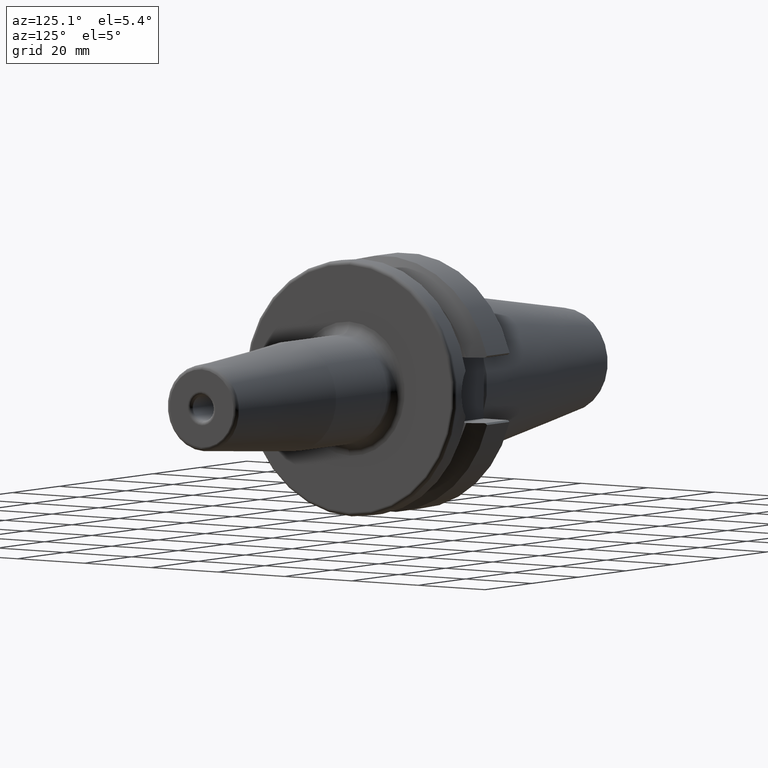
[diagram: clean part render]
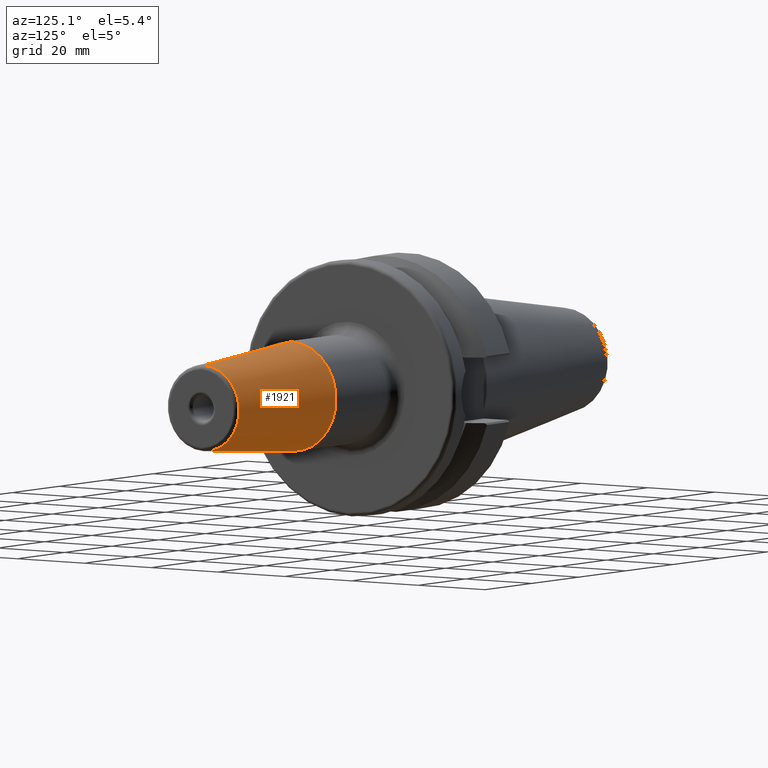
[diagram: same view with one face highlighted and labeled with its STEP entity id]
A machine part, auxiliary view. The second image highlights one B-rep face of the part: STEP entity #1921.
In plain terms, the highlighted conical surface has half-angle 4.5 deg.
Its self-contained STEP definition (entity closure, byte-faithful):
#432=CARTESIAN_POINT('',(8.907845909573E1,0.E0,0.E0));
#433=DIRECTION('',(1.E0,0.E0,0.E0));
#434=DIRECTION('',(0.E0,0.E0,-1.E0));
#435=AXIS2_PLACEMENT_3D('',#432,#433,#434);
#437=DIRECTION('',(-9.969173337331E-1,0.E0,-7.845909572785E-2));
#438=VECTOR('',#437,3.731209403789E1);
#439=CARTESIAN_POINT('',(8.907845909573E1,0.E0,-1.057252684207E1));
#440=LINE('',#439,#438);
#441=DIRECTION('',(-9.969173337331E-1,0.E0,7.845909572785E-2));
#442=VECTOR('',#441,3.731209403789E1);
#443=CARTESIAN_POINT('',(8.907845909573E1,0.E0,1.057252684207E1));
#444=LINE('',#443,#442);
#463=CARTESIAN_POINT('',(5.188138579148E1,0.E0,0.E0));
#464=DIRECTION('',(1.E0,0.E0,0.E0));
#465=DIRECTION('',(0.E0,0.E0,-1.E0));
#466=AXIS2_PLACEMENT_3D('',#463,#464,#465);
#1208=CARTESIAN_POINT('',(8.907845909573E1,0.E0,-1.057252684207E1));
#1210=VERTEX_POINT('',#1208);
#1211=CARTESIAN_POINT('',(5.188138579148E1,0.E0,-1.35E1));
#1212=VERTEX_POINT('',#1211);
#1230=CARTESIAN_POINT('',(8.907845909573E1,0.E0,1.057252684207E1));
#1232=VERTEX_POINT('',#1230);
#1233=CARTESIAN_POINT('',(5.188138579148E1,0.E0,1.35E1));
#1234=VERTEX_POINT('',#1233);
#1907=CARTESIAN_POINT('',(7.047992244360E1,0.E0,0.E0));
#1908=DIRECTION('',(-1.E0,0.E0,0.E0));
#1909=DIRECTION('',(0.E0,0.E0,-1.E0));
#1910=AXIS2_PLACEMENT_3D('',#1907,#1908,#1909);
#1911=CONICAL_SURFACE('',#1910,1.203626342104E1,4.5E0);
#1913=ORIENTED_EDGE('',*,*,#1912,.F.);
#1914=ORIENTED_EDGE('',*,*,#1902,.T.);
#1916=ORIENTED_EDGE('',*,*,#1915,.T.);
#1918=ORIENTED_EDGE('',*,*,#1917,.F.);
#1919=EDGE_LOOP('',(#1913,#1914,#1916,#1918));
#1920=FACE_OUTER_BOUND('',#1919,.F.);
#1921=ADVANCED_FACE('',(#1920),#1911,.T.);
#436=CIRCLE('',#435,1.057252684207E1);
#467=CIRCLE('',#466,1.35E1);
#1902=EDGE_CURVE('',#1210,#1232,#436,.T.);
#1912=EDGE_CURVE('',#1210,#1212,#440,.T.);
#1915=EDGE_CURVE('',#1232,#1234,#444,.T.);
#1917=EDGE_CURVE('',#1212,#1234,#467,.T.);